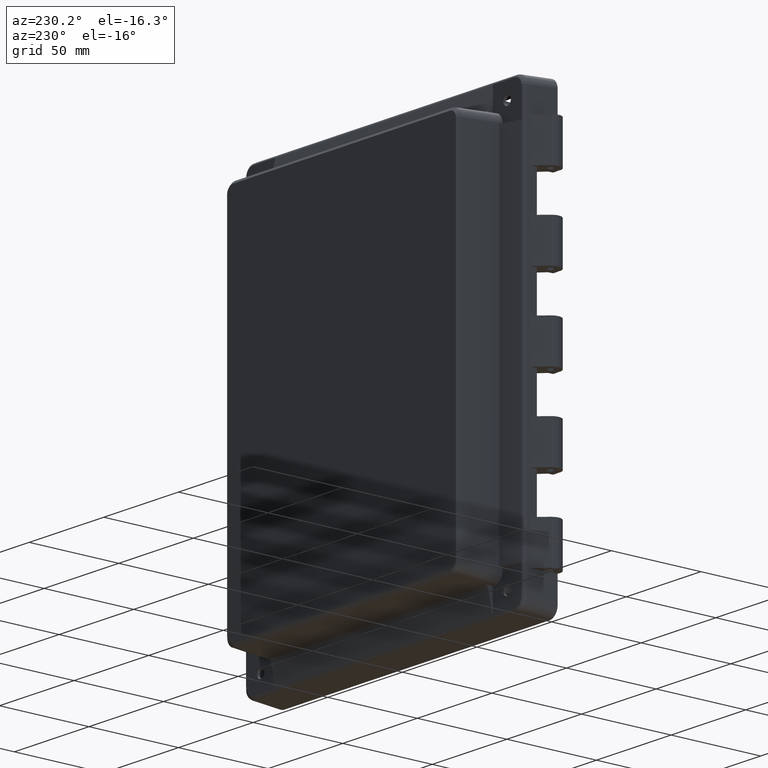
[diagram: clean part render]
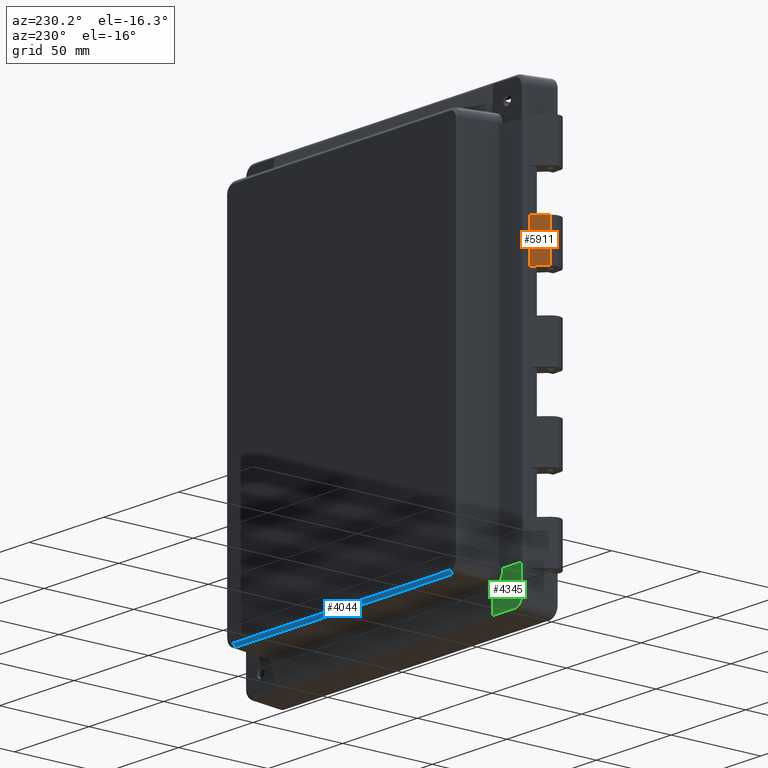
[diagram: same view with three faces highlighted in distinct colors, each labeled with its STEP entity id]
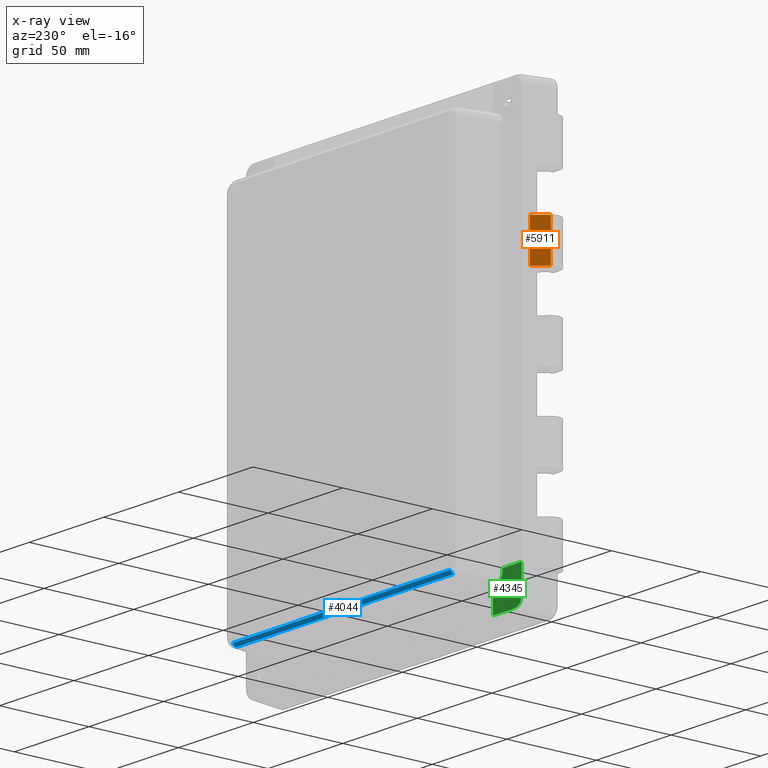
[diagram: x-ray of the same camera — body ghosted, the three highlighted faces saturated]
A machine part, auxiliary view with three faces highlighted in distinct colors.
The next image is the same camera in x-ray (body ghosted, the three faces saturated) — at least one of them is partly hidden behind the body in this view.
Their STEP definitions:

[orange] entity #5911 — the highlighted planar face has unit normal (0.7422, -0.6702, 0).
#1234 = VERTEX_POINT ( 'NONE', #7554 ) ;
#1349 = EDGE_CURVE ( 'NONE', #7790, #1234, #8526, .T. ) ;
#1421 = DIRECTION ( 'NONE',  ( 0.7421782431849693900, -0.6702025479978962500, 0.0000000000000000000 ) ) ;
#1578 = DIRECTION ( 'NONE',  ( -0.0000000000000000000, -0.0000000000000000000, -1.000000000000000000 ) ) ;
#1593 = ORIENTED_EDGE ( 'NONE', *, *, #8155, .T. ) ;
#1697 = CARTESIAN_POINT ( 'NONE',  ( -99.70174496477992000, 0.1839924851897061200, 33.60000000000000100 ) ) ;
#2029 = AXIS2_PLACEMENT_3D ( 'NONE', #2716, #1421, #5598 ) ;
#2198 = CARTESIAN_POINT ( 'NONE',  ( -93.63846871380160100, 6.898427888843764700, 56.39999999999999900 ) ) ;
#2287 = ORIENTED_EDGE ( 'NONE', *, *, #4405, .F. ) ;
#2528 = VECTOR ( 'NONE', #5864, 1000.000000000000000 ) ;
#2569 = LINE ( 'NONE', #2198, #7639 ) ;
#2716 = CARTESIAN_POINT ( 'NONE',  ( -93.63846871380160100, 6.898427888843764700, 56.39999999999999900 ) ) ;
#3151 = ORIENTED_EDGE ( 'NONE', *, *, #1349, .F. ) ;
#3231 = CARTESIAN_POINT ( 'NONE',  ( -93.63846871380160100, 6.898427888843764700, 33.60000000000000100 ) ) ;
#3294 = DIRECTION ( 'NONE',  ( -0.6702025479978962500, -0.7421782431849695000, 0.0000000000000000000 ) ) ;
#3362 = LINE ( 'NONE', #3231, #7997 ) ;
#3753 = EDGE_LOOP ( 'NONE', ( #6887, #2287, #3151, #1593 ) ) ;
#3780 = CARTESIAN_POINT ( 'NONE',  ( -93.63846871380160100, 6.898427888843764700, 56.39999999999999900 ) ) ;
#3894 = LINE ( 'NONE', #7205, #2528 ) ;
#3895 = DIRECTION ( 'NONE',  ( -0.6702025479978962500, -0.7421782431849695000, 0.0000000000000000000 ) ) ;
#4405 = EDGE_CURVE ( 'NONE', #1234, #6119, #3894, .T. ) ;
#4907 = VERTEX_POINT ( 'NONE', #6452 ) ;
#5107 = EDGE_CURVE ( 'NONE', #4907, #6119, #3362, .T. ) ;
#5476 = PLANE ( 'NONE',  #2029 ) ;
#5598 = DIRECTION ( 'NONE',  ( 0.6702025479978962500, 0.7421782431849693900, 0.0000000000000000000 ) ) ;
#5864 = DIRECTION ( 'NONE',  ( -0.0000000000000000000, -0.0000000000000000000, -1.000000000000000000 ) ) ;
#5873 = VECTOR ( 'NONE', #3895, 1000.000000000000000 ) ;
#5911 = ADVANCED_FACE ( 'NONE', ( #7501 ), #5476, .F. ) ;
#6119 = VERTEX_POINT ( 'NONE', #1697 ) ;
#6452 = CARTESIAN_POINT ( 'NONE',  ( -93.63846871380160100, 6.898427888843764700, 33.60000000000000100 ) ) ;
#6887 = ORIENTED_EDGE ( 'NONE', *, *, #5107, .T. ) ;
#7205 = CARTESIAN_POINT ( 'NONE',  ( -99.70174496477992000, 0.1839924851897061200, 56.39999999999999900 ) ) ;
#7501 = FACE_OUTER_BOUND ( 'NONE', #3753, .T. ) ;
#7554 = CARTESIAN_POINT ( 'NONE',  ( -99.70174496477992000, 0.1839924851897061200, 56.39999999999999900 ) ) ;
#7639 = VECTOR ( 'NONE', #1578, 1000.000000000000000 ) ;
#7712 = CARTESIAN_POINT ( 'NONE',  ( -93.63846871380158600, 6.898427888843773600, 56.40000000000000600 ) ) ;
#7790 = VERTEX_POINT ( 'NONE', #7712 ) ;
#7997 = VECTOR ( 'NONE', #3294, 1000.000000000000000 ) ;
#8155 = EDGE_CURVE ( 'NONE', #7790, #4907, #2569, .T. ) ;
#8526 = LINE ( 'NONE', #3780, #5873 ) ;

[blue] entity #4044 — the highlighted planar face has unit normal (0, -0.7431, 0.6691).
#168 = FACE_OUTER_BOUND ( 'NONE', #6010, .T. ) ;
#818 = CARTESIAN_POINT ( 'NONE',  ( 72.80417699759090100, 32.50205569786806600, -104.2966394387410100 ) ) ;
#1118 = B_SPLINE_CURVE_WITH_KNOTS ( 'NONE', 3,
 ( #8061, #4794, #7454, #818 ),
 .UNSPECIFIED., .F., .F.,
 ( 4, 4 ),
 ( 0.0000000000000000000, 1.000000000000000000 ),
 .UNSPECIFIED. ) ;
#1149 = CARTESIAN_POINT ( 'NONE',  ( 72.72567306322645200, 32.50205569786804500, -104.2966394387410100 ) ) ;
#2026 = B_SPLINE_CURVE_WITH_KNOTS ( 'NONE', 1,
 ( #4461, #5097 ),
 .UNSPECIFIED., .F., .F.,
 ( 2, 2 ),
 ( 0.0000000000000000000, 1.000000000000000000 ),
 .UNSPECIFIED. ) ;
#2516 = VERTEX_POINT ( 'NONE', #4005 ) ;
#2810 = CARTESIAN_POINT ( 'NONE',  ( -72.80417699759088600, 32.50205569786806600, -104.2966394387410100 ) ) ;
#2981 = DIRECTION ( 'NONE',  ( 0.0000000000000000000, -0.7431448254773890300, 0.6691306063588640100 ) ) ;
#3183 = VERTEX_POINT ( 'NONE', #2810 ) ;
#3291 = LINE ( 'NONE', #8386, #8539 ) ;
#3534 = CARTESIAN_POINT ( 'NONE',  ( 72.80417699759090100, 32.50205569786806600, -104.2966394387410100 ) ) ;
#3773 = EDGE_CURVE ( 'NONE', #4677, #3183, #2026, .T. ) ;
#3798 = EDGE_CURVE ( 'NONE', #3183, #6806, #8136, .T. ) ;
#3850 = DIRECTION ( 'NONE',  ( -1.000000000000000000, 0.0000000000000000000, 0.0000000000000000000 ) ) ;
#3906 = ORIENTED_EDGE ( 'NONE', *, *, #7560, .T. ) ;
#4005 = CARTESIAN_POINT ( 'NONE',  ( 72.80417699759088600, 34.00000000000000000, -102.6330037502762000 ) ) ;
#4044 = ADVANCED_FACE ( 'NONE', ( #168 ), #6335, .F. ) ;
#4461 = CARTESIAN_POINT ( 'NONE',  ( -72.80417699759088600, 34.00000000000000000, -102.6330037502762000 ) ) ;
#4677 = VERTEX_POINT ( 'NONE', #5462 ) ;
#4794 = CARTESIAN_POINT ( 'NONE',  ( 72.80417699759088600, 33.50068523262267900, -103.1875489797644700 ) ) ;
#5077 = CARTESIAN_POINT ( 'NONE',  ( -80.00000000000002800, 34.00000000000000000, -102.6330037502762000 ) ) ;
#5097 = CARTESIAN_POINT ( 'NONE',  ( -72.80417699759088600, 32.50205569786806600, -104.2966394387410100 ) ) ;
#5462 = CARTESIAN_POINT ( 'NONE',  ( -72.80417699759088600, 34.00000000000000000, -102.6330037502762000 ) ) ;
#5628 = EDGE_CURVE ( 'NONE', #2516, #4677, #3291, .T. ) ;
#5895 = VECTOR ( 'NONE', #8479, 1000.000000000000000 ) ;
#6010 = EDGE_LOOP ( 'NONE', ( #3906, #7583, #8219, #7558 ) ) ;
#6335 = PLANE ( 'NONE',  #7553 ) ;
#6806 = VERTEX_POINT ( 'NONE', #3534 ) ;
#6968 = DIRECTION ( 'NONE',  ( 0.0000000000000000000, -0.6691306063588640100, -0.7431448254773890300 ) ) ;
#7454 = CARTESIAN_POINT ( 'NONE',  ( 72.80417699759088600, 33.00137046524536500, -103.7420942092527400 ) ) ;
#7553 = AXIS2_PLACEMENT_3D ( 'NONE', #5077, #2981, #6968 ) ;
#7558 = ORIENTED_EDGE ( 'NONE', *, *, #5628, .F. ) ;
#7560 = EDGE_CURVE ( 'NONE', #2516, #6806, #1118, .T. ) ;
#7583 = ORIENTED_EDGE ( 'NONE', *, *, #3798, .F. ) ;
#8061 = CARTESIAN_POINT ( 'NONE',  ( 72.80417699759088600, 34.00000000000000000, -102.6330037502762000 ) ) ;
#8136 = LINE ( 'NONE', #1149, #5895 ) ;
#8219 = ORIENTED_EDGE ( 'NONE', *, *, #3773, .F. ) ;
#8386 = CARTESIAN_POINT ( 'NONE',  ( -72.72567306322645200, 34.00000000000000000, -102.6330037502762000 ) ) ;
#8479 = DIRECTION ( 'NONE',  ( 1.000000000000000000, -0.0000000000000000000, -0.0000000000000000000 ) ) ;
#8539 = VECTOR ( 'NONE', #3850, 1000.000000000000000 ) ;

[green] entity #4345 — the highlighted planar face has unit normal (0, 1, 0).
#18 = CARTESIAN_POINT ( 'NONE',  ( -92.08950946164000600, 10.26305314132456700, -114.6299924083981000 ) ) ;
#61 = VECTOR ( 'NONE', #3299, 1000.000000000000000 ) ;
#91 = CARTESIAN_POINT ( 'NONE',  ( -91.58650817779161500, 10.26305314132456900, -116.3156988243601300 ) ) ;
#109 = CARTESIAN_POINT ( 'NONE',  ( -91.17792925753431600, 10.26305314132456700, -116.9575850002400700 ) ) ;
#115 = VERTEX_POINT ( 'NONE', #8209 ) ;
#133 = CARTESIAN_POINT ( 'NONE',  ( -81.76090246257234600, 10.26305314132456700, -107.1170593762610300 ) ) ;
#140 = CARTESIAN_POINT ( 'NONE',  ( -78.76745017932103100, 10.26305314132457300, -102.7389724338110900 ) ) ;
#184 = CARTESIAN_POINT ( 'NONE',  ( -73.96967373504918400, 10.26305314132457800, -105.4621361761993200 ) ) ;
#337 = CARTESIAN_POINT ( 'NONE',  ( -79.46213617619938000, 10.26305314132457100, -100.6481929649096400 ) ) ;
#366 = DIRECTION ( 'NONE',  ( -0.0000000000000000000, 0.0000000000000000000, 1.000000000000000000 ) ) ;
#385 = VECTOR ( 'NONE', #5503, 1000.000000000000000 ) ;
#435 = DIRECTION ( 'NONE',  ( 0.0000000000000000000, -0.0000000000000000000, 1.000000000000000000 ) ) ;
#484 = DIRECTION ( 'NONE',  ( 0.0000000000000000000, 0.0000000000000000000, -1.000000000000000000 ) ) ;
#714 = CARTESIAN_POINT ( 'NONE',  ( 94.00000000000009900, 10.26305314132456700, -118.6826406704508100 ) ) ;
#756 = CARTESIAN_POINT ( 'NONE',  ( -74.68567243382972300, 10.26305314132457300, -105.4268915847056000 ) ) ;
#793 = CARTESIAN_POINT ( 'NONE',  ( -89.12433071705940800, 10.26305314132457100, -118.3977276271034500 ) ) ;
#844 = CARTESIAN_POINT ( 'NONE',  ( -79.46213617619936500, 10.26305314132456600, -100.3306742122471900 ) ) ;
#1029 = ORIENTED_EDGE ( 'NONE', *, *, #3919, .F. ) ;
#1098 = EDGE_CURVE ( 'NONE', #2180, #3081, #3605, .T. ) ;
#1100 = ORIENTED_EDGE ( 'NONE', *, *, #7865, .T. ) ;
#1192 = LINE ( 'NONE', #6956, #1919 ) ;
#1254 = DIRECTION ( 'NONE',  ( -0.0000000000000000000, -1.000000000000000000, -0.0000000000000000000 ) ) ;
#1361 = CARTESIAN_POINT ( 'NONE',  ( -86.46514429595924900, 10.26305314132456700, -118.6826406704508100 ) ) ;
#1392 = CARTESIAN_POINT ( 'NONE',  ( -75.38415624586853900, 10.26305314132457300, -105.2888014851460000 ) ) ;
#1432 = CARTESIAN_POINT ( 'NONE',  ( -90.65763125663386300, 10.26305314132456900, -117.5129712022730100 ) ) ;
#1450 = CARTESIAN_POINT ( 'NONE',  ( -88.63656228072144900, 10.26305314132456900, -118.5274871416140200 ) ) ;
#1470 = CARTESIAN_POINT ( 'NONE',  ( -76.72855308645587500, 10.26305314132457400, -104.7732004955855100 ) ) ;
#1475 = DIRECTION ( 'NONE',  ( -0.0000000000000000000, -1.000000000000000000, -0.0000000000000000000 ) ) ;
#1506 = EDGE_CURVE ( 'NONE', #6189, #8045, #8107, .T. ) ;
#1529 = DIRECTION ( 'NONE',  ( -0.0000000000000000000, -1.000000000000000000, -0.0000000000000000000 ) ) ;
#1568 = CARTESIAN_POINT ( 'NONE',  ( -82.51926223426441700, 10.26305314132456700, -106.9992622342643200 ) ) ;
#1634 = EDGE_CURVE ( 'NONE', #5437, #2180, #3896, .T. ) ;
#1696 = VERTEX_POINT ( 'NONE', #4874 ) ;
#1746 = EDGE_LOOP ( 'NONE', ( #1100, #4213, #3823, #7650, #3988, #4752 ) ) ;
#1755 = DIRECTION ( 'NONE',  ( 0.0000000000000000000, 1.000000000000000000, 0.0000000000000000000 ) ) ;
#1771 = AXIS2_PLACEMENT_3D ( 'NONE', #8075, #1529, #3484 ) ;
#1795 = EDGE_CURVE ( 'NONE', #3691, #5751, #3377, .T. ) ;
#1898 = EDGE_CURVE ( 'NONE', #8045, #5212, #5858, .T. ) ;
#1919 = VECTOR ( 'NONE', #366, 1000.000000000000000 ) ;
#1979 = CARTESIAN_POINT ( 'NONE',  ( -87.02183024602126700, 10.26305314132456700, -118.6826406704508200 ) ) ;
#2074 = CARTESIAN_POINT ( 'NONE',  ( -79.18177703806154000, 10.26305314132457100, -101.7392091069349400 ) ) ;
#2099 = CARTESIAN_POINT ( 'NONE',  ( -79.46213617619935100, 10.26305314132457400, -99.96967373504915600 ) ) ;
#2133 = CARTESIAN_POINT ( 'NONE',  ( -75.73032353873496400, 10.26305314132457300, -105.1847280178986900 ) ) ;
#2180 = VERTEX_POINT ( 'NONE', #6824 ) ;
#2233 = ORIENTED_EDGE ( 'NONE', *, *, #7228, .F. ) ;
#2241 = VERTEX_POINT ( 'NONE', #8151 ) ;
#2279 = CARTESIAN_POINT ( 'NONE',  ( -92.18264067045092200, 10.26305314132456700, 120.5000000000000000 ) ) ;
#2334 = FACE_OUTER_BOUND ( 'NONE', #5849, .T. ) ;
#2426 = DIRECTION ( 'NONE',  ( 0.0000000000000000000, 0.0000000000000000000, 1.000000000000000000 ) ) ;
#2479 = CARTESIAN_POINT ( 'NONE',  ( -79.46213617619935100, 10.26305314132457400, -99.96967373504915600 ) ) ;
#2525 = AXIS2_PLACEMENT_3D ( 'NONE', #5774, #8343, #2426 ) ;
#2763 = CARTESIAN_POINT ( 'NONE',  ( -79.42688717324296000, 10.26305314132457400, -100.6874991038464800 ) ) ;
#2789 = CARTESIAN_POINT ( 'NONE',  ( -88.12999240839820900, 10.26305314132456700, -118.5895094616398600 ) ) ;
#2812 = CARTESIAN_POINT ( 'NONE',  ( -78.35913959468116700, 10.26305314132457300, -103.3487171135075600 ) ) ;
#2935 = B_SPLINE_CURVE_WITH_KNOTS ( 'NONE', 3,
 ( #184, #5375, #756, #1392, #2133, #1470, #5399, #2812, #140, #2074, #7441, #2763, #844, #2099 ),
 .UNSPECIFIED., .F., .F.,
 ( 4, 2, 2, 2, 2, 2, 4 ),
 ( 0.0000000000000000000, 0.001067629818364159700, 0.002135259636728319400, 0.004270519273456661400, 0.006405778910185003700, 0.007473408728549193200, 0.008541038546913383400 ),
 .UNSPECIFIED. ) ;
#2946 = DIRECTION ( 'NONE',  ( -1.000000000000000000, 0.0000000000000000000, 0.0000000000000000000 ) ) ;
#2953 = DIRECTION ( 'NONE',  ( 2.681918994605262700E-014, 0.0000000000000000000, 1.000000000000000000 ) ) ;
#3021 = B_SPLINE_CURVE_WITH_KNOTS ( 'NONE', 3,
 ( #4729, #4652, #5974, #3361 ),
 .UNSPECIFIED., .F., .F.,
 ( 4, 4 ),
 ( 1.387778780781445700E-017, 0.001667450946668613100 ),
 .UNSPECIFIED. ) ;
#3081 = VERTEX_POINT ( 'NONE', #7410 ) ;
#3106 = CIRCLE ( 'NONE', #2525, 2.500000000000002200 ) ;
#3215 = CARTESIAN_POINT ( 'NONE',  ( -75.68310772823618000, 10.26305314132457100, -105.4621361761993200 ) ) ;
#3290 = EDGE_CURVE ( 'NONE', #7363, #2241, #6094, .T. ) ;
#3299 = DIRECTION ( 'NONE',  ( -1.000000000000000000, 0.0000000000000000000, 0.0000000000000000000 ) ) ;
#3341 = CARTESIAN_POINT ( 'NONE',  ( -79.46213617619932300, 10.26305314132457400, -98.93475897172260100 ) ) ;
#3361 = CARTESIAN_POINT ( 'NONE',  ( -92.08950946164000600, 10.26305314132456700, -114.6299924083981000 ) ) ;
#3377 = LINE ( 'NONE', #337, #5540 ) ;
#3384 = CARTESIAN_POINT ( 'NONE',  ( -90.46072903492049000, 10.26305314132456700, -117.6754829822426700 ) ) ;
#3399 = CARTESIAN_POINT ( 'NONE',  ( -80.60552486977380200, 10.26305314132456700, -107.9094165500067400 ) ) ;
#3416 = CARTESIAN_POINT ( 'NONE',  ( -92.08950946164000600, 10.26305314132456700, -114.6299924083981000 ) ) ;
#3426 = DIRECTION ( 'NONE',  ( 1.000000000000000000, -0.0000000000000000000, 0.0000000000000000000 ) ) ;
#3441 = CARTESIAN_POINT ( 'NONE',  ( -91.46195803504279800, 10.26305314132456700, -116.5404059448426200 ) ) ;
#3451 = CARTESIAN_POINT ( 'NONE',  ( -72.93475897172260100, 10.26305314132457400, -105.4621361761993200 ) ) ;
#3463 = ORIENTED_EDGE ( 'NONE', *, *, #8297, .F. ) ;
#3484 = DIRECTION ( 'NONE',  ( 0.0000000000000000000, 0.0000000000000000000, 1.000000000000000000 ) ) ;
#3605 = CIRCLE ( 'NONE', #7727, 2.500000000000002200 ) ;
#3643 = CARTESIAN_POINT ( 'NONE',  ( -97.79819296490960300, 10.26305314132457100, -98.93475897172260100 ) ) ;
#3691 = VERTEX_POINT ( 'NONE', #2479 ) ;
#3783 = CARTESIAN_POINT ( 'NONE',  ( -88.12999240839820900, 10.26305314132456700, -118.5895094616398600 ) ) ;
#3823 = ORIENTED_EDGE ( 'NONE', *, *, #1098, .T. ) ;
#3896 = CIRCLE ( 'NONE', #1771, 2.500000000000002200 ) ;
#3919 = EDGE_CURVE ( 'NONE', #7696, #115, #6718, .T. ) ;
#3988 = ORIENTED_EDGE ( 'NONE', *, *, #1506, .T. ) ;
#4030 = AXIS2_PLACEMENT_3D ( 'NONE', #6331, #1755, #435 ) ;
#4079 = CARTESIAN_POINT ( 'NONE',  ( -91.89798329728466800, 10.26305314132456600, -115.6221673674419200 ) ) ;
#4114 = CARTESIAN_POINT ( 'NONE',  ( -81.67983270427006900, 10.26305314132456700, -107.1571781059347000 ) ) ;
#4147 = EDGE_CURVE ( 'NONE', #2241, #3691, #2935, .T. ) ;
#4162 = CARTESIAN_POINT ( 'NONE',  ( -89.82265645280091300, 10.26305314132456600, -118.0830192297788100 ) ) ;
#4173 = EDGE_CURVE ( 'NONE', #5120, #5420, #5273, .T. ) ;
#4213 = ORIENTED_EDGE ( 'NONE', *, *, #1634, .T. ) ;
#4345 = ADVANCED_FACE ( 'NONE', ( #2334, #6486 ), #7070, .T. ) ;
#4610 = ORIENTED_EDGE ( 'NONE', *, *, #4173, .F. ) ;
#4627 = VECTOR ( 'NONE', #7389, 1000.000000000000000 ) ;
#4652 = CARTESIAN_POINT ( 'NONE',  ( -92.18264067045092200, 10.26305314132456700, -113.5218302460211800 ) ) ;
#4729 = CARTESIAN_POINT ( 'NONE',  ( -92.18264067045092200, 10.26305314132456600, -112.9651442959591800 ) ) ;
#4747 = CARTESIAN_POINT ( 'NONE',  ( -91.01753453910674800, 10.26305314132456900, -117.1524494880284700 ) ) ;
#4752 = ORIENTED_EDGE ( 'NONE', *, *, #1898, .T. ) ;
#4776 = ORIENTED_EDGE ( 'NONE', *, *, #1795, .F. ) ;
#4781 = CARTESIAN_POINT ( 'NONE',  ( -90.04408250934280000, 10.26305314132456600, -117.9597556672969700 ) ) ;
#4830 = CIRCLE ( 'NONE', #8057, 0.2999999999999947200 ) ;
#4874 = CARTESIAN_POINT ( 'NONE',  ( -72.93475897172260100, 10.26305314132457100, -118.6826406704508100 ) ) ;
#5071 = CARTESIAN_POINT ( 'NONE',  ( -86.46514429595924900, 10.26305314132456700, -118.6826406704508100 ) ) ;
#5120 = VERTEX_POINT ( 'NONE', #18 ) ;
#5129 = ORIENTED_EDGE ( 'NONE', *, *, #8038, .F. ) ;
#5212 = VERTEX_POINT ( 'NONE', #133 ) ;
#5273 = B_SPLINE_CURVE_WITH_KNOTS ( 'NONE', 3,
 ( #3416, #7975, #4079, #91, #3441, #109, #4747, #1432, #3384, #4781, #4162, #793, #1450, #2789 ),
 .UNSPECIFIED., .F., .F.,
 ( 4, 2, 2, 2, 2, 2, 4 ),
 ( 3.103167691559091400E-017, 0.001507838627077683900, 0.002261757940616529200, 0.003015677254155374700, 0.003769596567694220200, 0.004523515881233064500, 0.006031354508310735600 ),
 .UNSPECIFIED. ) ;
#5375 = CARTESIAN_POINT ( 'NONE',  ( -74.33067421224694700, 10.26305314132458000, -105.4621361761993500 ) ) ;
#5399 = CARTESIAN_POINT ( 'NONE',  ( -77.34010365958137400, 10.26305314132457100, -104.3657568564421600 ) ) ;
#5420 = VERTEX_POINT ( 'NONE', #8212 ) ;
#5437 = VERTEX_POINT ( 'NONE', #1568 ) ;
#5503 = DIRECTION ( 'NONE',  ( 0.0000000000000000000, 0.0000000000000000000, -1.000000000000000000 ) ) ;
#5540 = VECTOR ( 'NONE', #2953, 1000.000000000000000 ) ;
#5566 = VERTEX_POINT ( 'NONE', #5071 ) ;
#5705 = EDGE_CURVE ( 'NONE', #5420, #5566, #7034, .T. ) ;
#5751 = VERTEX_POINT ( 'NONE', #3341 ) ;
#5760 = AXIS2_PLACEMENT_3D ( 'NONE', #6407, #7083, #484 ) ;
#5774 = CARTESIAN_POINT ( 'NONE',  ( -82.51926223426441700, 10.26305314132456700, -109.4992622342643400 ) ) ;
#5825 = ORIENTED_EDGE ( 'NONE', *, *, #4147, .F. ) ;
#5849 = EDGE_LOOP ( 'NONE', ( #7360, #4610, #2233, #1029, #3463, #4776, #5825, #5903, #6898, #5129 ) ) ;
#5858 = CIRCLE ( 'NONE', #5760, 0.2999999999999947200 ) ;
#5903 = ORIENTED_EDGE ( 'NONE', *, *, #3290, .F. ) ;
#5974 = CARTESIAN_POINT ( 'NONE',  ( -92.15720414382043700, 10.26305314132456700, -114.0770932828124000 ) ) ;
#6094 = LINE ( 'NONE', #3215, #61 ) ;
#6189 = VERTEX_POINT ( 'NONE', #6888 ) ;
#6290 = CARTESIAN_POINT ( 'NONE',  ( -92.18264067045092200, 10.26305314132457100, -98.93475897172260100 ) ) ;
#6331 = CARTESIAN_POINT ( 'NONE',  ( 73.96967373504921300, 10.26305314132456700, 99.96967373504912800 ) ) ;
#6407 = CARTESIAN_POINT ( 'NONE',  ( -81.85190563517538500, 10.26305314132456700, -107.4029237192214200 ) ) ;
#6486 = FACE_BOUND ( 'NONE', #1746, .T. ) ;
#6539 = EDGE_CURVE ( 'NONE', #1696, #7363, #1192, .T. ) ;
#6562 = DIRECTION ( 'NONE',  ( 0.0000000000000000000, 0.0000000000000000000, 1.000000000000000000 ) ) ;
#6563 = EDGE_CURVE ( 'NONE', #3081, #6189, #4830, .T. ) ;
#6718 = LINE ( 'NONE', #2279, #385 ) ;
#6824 = CARTESIAN_POINT ( 'NONE',  ( -82.51926223426441700, 10.26305314132456700, -111.9992622342643400 ) ) ;
#6836 = LINE ( 'NONE', #714, #8148 ) ;
#6888 = CARTESIAN_POINT ( 'NONE',  ( -80.60552486977380200, 10.26305314132456700, -107.9094165500067400 ) ) ;
#6898 = ORIENTED_EDGE ( 'NONE', *, *, #6539, .F. ) ;
#6956 = CARTESIAN_POINT ( 'NONE',  ( -72.93475897172260100, 10.26305314132457100, -107.1755701693863000 ) ) ;
#7034 = B_SPLINE_CURVE_WITH_KNOTS ( 'NONE', 3,
 ( #3783, #7281, #1979, #1361 ),
 .UNSPECIFIED., .F., .F.,
 ( 4, 4 ),
 ( 2.775557561562891000E-017, 0.001667450946668669900 ),
 .UNSPECIFIED. ) ;
#7070 = PLANE ( 'NONE',  #4030 ) ;
#7083 = DIRECTION ( 'NONE',  ( -0.0000000000000000000, -1.000000000000000000, -0.0000000000000000000 ) ) ;
#7131 = DIRECTION ( 'NONE',  ( 0.0000000000000000000, 0.0000000000000000000, 1.000000000000000000 ) ) ;
#7133 = LINE ( 'NONE', #3643, #7537 ) ;
#7162 = CARTESIAN_POINT ( 'NONE',  ( -80.77759780067911800, 10.26305314132456700, -108.1551621632934400 ) ) ;
#7228 = EDGE_CURVE ( 'NONE', #115, #5120, #3021, .T. ) ;
#7281 = CARTESIAN_POINT ( 'NONE',  ( -87.57709328281252700, 10.26305314132456700, -118.6572041438203100 ) ) ;
#7296 = CARTESIAN_POINT ( 'NONE',  ( -82.51926223426441700, 10.26305314132456700, -109.4992622342643400 ) ) ;
#7360 = ORIENTED_EDGE ( 'NONE', *, *, #5705, .F. ) ;
#7363 = VERTEX_POINT ( 'NONE', #3451 ) ;
#7389 = DIRECTION ( 'NONE',  ( -0.8191520442889915800, 0.0000000000000000000, 0.5735764363510464900 ) ) ;
#7410 = CARTESIAN_POINT ( 'NONE',  ( -80.54009810519021100, 10.26305314132456700, -107.9718757899792400 ) ) ;
#7441 = CARTESIAN_POINT ( 'NONE',  ( -79.28671174719474400, 10.26305314132457300, -101.3928949221775800 ) ) ;
#7537 = VECTOR ( 'NONE', #2946, 1000.000000000000000 ) ;
#7650 = ORIENTED_EDGE ( 'NONE', *, *, #6563, .T. ) ;
#7696 = VERTEX_POINT ( 'NONE', #6290 ) ;
#7727 = AXIS2_PLACEMENT_3D ( 'NONE', #7296, #1475, #7131 ) ;
#7865 = EDGE_CURVE ( 'NONE', #5212, #5437, #3106, .T. ) ;
#7975 = CARTESIAN_POINT ( 'NONE',  ( -92.02752371964801600, 10.26305314132456700, -115.1362635281113100 ) ) ;
#8038 = EDGE_CURVE ( 'NONE', #5566, #1696, #6836, .T. ) ;
#8045 = VERTEX_POINT ( 'NONE', #4114 ) ;
#8057 = AXIS2_PLACEMENT_3D ( 'NONE', #7162, #1254, #6562 ) ;
#8075 = CARTESIAN_POINT ( 'NONE',  ( -82.51926223426441700, 10.26305314132456700, -109.4992622342643400 ) ) ;
#8107 = LINE ( 'NONE', #3399, #4627 ) ;
#8148 = VECTOR ( 'NONE', #3426, 1000.000000000000000 ) ;
#8151 = CARTESIAN_POINT ( 'NONE',  ( -73.96967373504918400, 10.26305314132457800, -105.4621361761993200 ) ) ;
#8209 = CARTESIAN_POINT ( 'NONE',  ( -92.18264067045092200, 10.26305314132456600, -112.9651442959591800 ) ) ;
#8212 = CARTESIAN_POINT ( 'NONE',  ( -88.12999240839820900, 10.26305314132456700, -118.5895094616398600 ) ) ;
#8297 = EDGE_CURVE ( 'NONE', #5751, #7696, #7133, .T. ) ;
#8343 = DIRECTION ( 'NONE',  ( -0.0000000000000000000, -1.000000000000000000, -0.0000000000000000000 ) ) ;